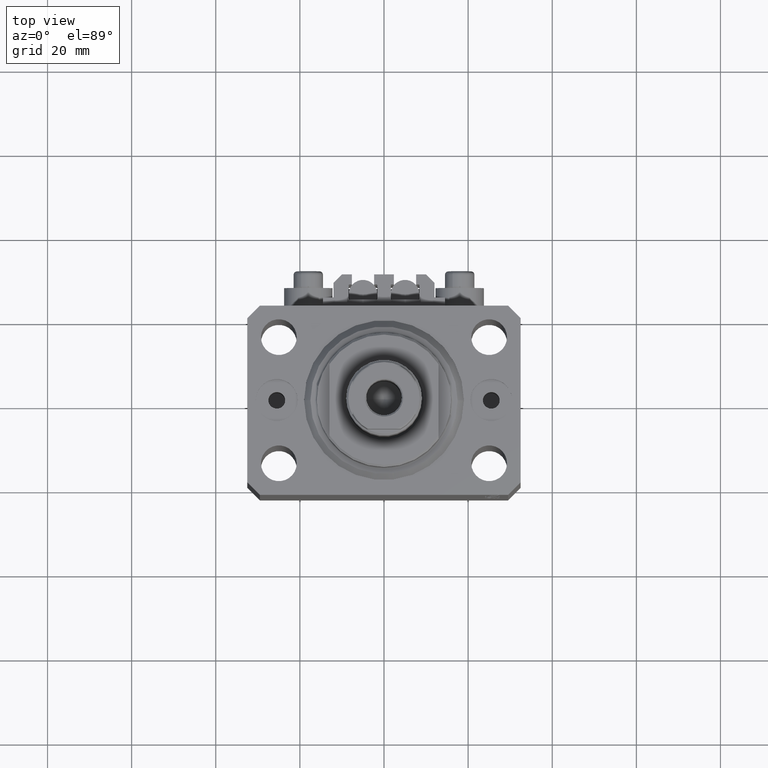
[diagram: clean part render]
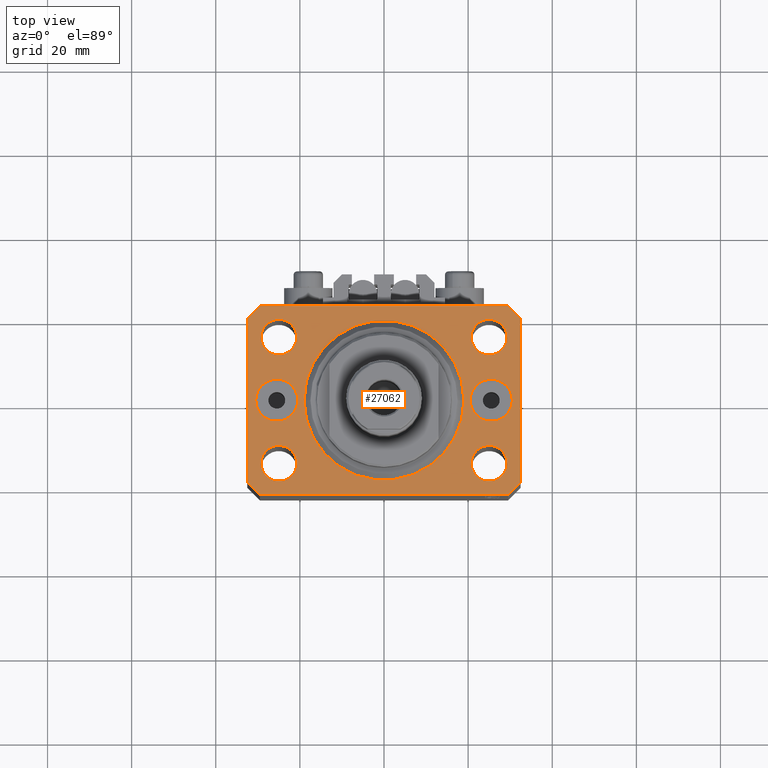
[diagram: same view with one face highlighted and labeled with its STEP entity id]
A machine part, top view. The second image highlights one B-rep face of the part: STEP entity #27062.
In plain terms, the highlighted planar face has unit normal (0, 0, 1).
Its self-contained STEP definition (entity closure, byte-faithful):
#212 = ORIENTED_EDGE ( 'NONE', *, *, #43812, .F. ) ;
#341 = EDGE_LOOP ( 'NONE', ( #42589, #27396 ) ) ;
#890 = CARTESIAN_POINT ( 'NONE',  ( 29.49999999999650413, -22.49999999999949196, 0.000000000000000000 ) ) ;
#1422 = CARTESIAN_POINT ( 'NONE',  ( -32.49999999999650413, 19.49999999999949907, 0.000000000000000000 ) ) ;
#1502 = DIRECTION ( 'NONE',  ( 0.000000000000000000, 0.000000000000000000, 1.000000000000000000 ) ) ;
#1574 = DIRECTION ( 'NONE',  ( 1.000000000000000000, 0.000000000000000000, 0.000000000000000000 ) ) ;
#1677 = CARTESIAN_POINT ( 'NONE',  ( -20.74999999995962341, -15.00000000000000355, 0.000000000000000000 ) ) ;
#2594 = CIRCLE ( 'NONE', #25802, 5.000000000003342215 ) ;
#2807 = VERTEX_POINT ( 'NONE', #11728 ) ;
#2954 = VERTEX_POINT ( 'NONE', #13647 ) ;
#3882 = CARTESIAN_POINT ( 'NONE',  ( 20.49999999999665690, 6.123233995740857512E-16, 0.000000000000000000 ) ) ;
#4400 = EDGE_LOOP ( 'NONE', ( #41999, #212 ) ) ;
#5500 = CARTESIAN_POINT ( 'NONE',  ( -29.25000000004036593, -15.00000000000000355, 0.000000000000000000 ) ) ;
#5580 = ORIENTED_EDGE ( 'NONE', *, *, #44724, .T. ) ;
#6516 = VECTOR ( 'NONE', #40094, 1000.000000000000000 ) ;
#6798 = EDGE_CURVE ( 'NONE', #31890, #43561, #11416, .T. ) ;
#7216 = CARTESIAN_POINT ( 'NONE',  ( -25.50000000000000000, 0.000000000000000000, 0.000000000000000000 ) ) ;
#7840 = DIRECTION ( 'NONE',  ( 1.000000000000000000, 0.000000000000000000, 0.000000000000000000 ) ) ;
#7847 = DIRECTION ( 'NONE',  ( 1.000000000000000000, 0.000000000000000000, 0.000000000000000000 ) ) ;
#8018 = EDGE_LOOP ( 'NONE', ( #27146, #45057 ) ) ;
#8037 = CARTESIAN_POINT ( 'NONE',  ( 25.00000000000000000, 14.99999999999999289, 0.000000000000000000 ) ) ;
#8135 = DIRECTION ( 'NONE',  ( 1.000000000000000000, 0.000000000000000000, -0.000000000000000000 ) ) ;
#8361 = VERTEX_POINT ( 'NONE', #3882 ) ;
#8397 = CARTESIAN_POINT ( 'NONE',  ( 29.24999999997631051, -15.00000000000000355, 0.000000000000000000 ) ) ;
#8990 = CIRCLE ( 'NONE', #36080, 4.250000000021375790 ) ;
#8992 = DIRECTION ( 'NONE',  ( 0.000000000000000000, 0.000000000000000000, 1.000000000000000000 ) ) ;
#9124 = ORIENTED_EDGE ( 'NONE', *, *, #39782, .F. ) ;
#9163 = VERTEX_POINT ( 'NONE', #37433 ) ;
#9344 = AXIS2_PLACEMENT_3D ( 'NONE', #27968, #13188, #1574 ) ;
#9843 = ORIENTED_EDGE ( 'NONE', *, *, #25281, .F. ) ;
#10347 = CIRCLE ( 'NONE', #38206, 5.000000000003342215 ) ;
#10369 = ORIENTED_EDGE ( 'NONE', *, *, #30901, .F. ) ;
#11061 = FACE_BOUND ( 'NONE', #29473, .T. ) ;
#11083 = DIRECTION ( 'NONE',  ( 0.000000000000000000, 0.000000000000000000, 1.000000000000000000 ) ) ;
#11189 = ORIENTED_EDGE ( 'NONE', *, *, #6798, .F. ) ;
#11197 = AXIS2_PLACEMENT_3D ( 'NONE', #29486, #37235, #8135 ) ;
#11211 = CARTESIAN_POINT ( 'NONE',  ( -30.50000000000333955, 6.123233995740857512E-16, 0.000000000000000000 ) ) ;
#11416 = CIRCLE ( 'NONE', #36960, 4.250000000040370374 ) ;
#11477 = VECTOR ( 'NONE', #17161, 1000.000000000000000 ) ;
#11537 = PLANE ( 'NONE',  #11197 ) ;
#11728 = CARTESIAN_POINT ( 'NONE',  ( 19.00000000000000000, 0.000000000000000000, 0.000000000000000000 ) ) ;
#11766 = CARTESIAN_POINT ( 'NONE',  ( 29.24999999995729283, 14.99999999999999289, 0.000000000000000000 ) ) ;
#11792 = EDGE_CURVE ( 'NONE', #27155, #44011, #41145, .T. ) ;
#12754 = CARTESIAN_POINT ( 'NONE',  ( 24.99999999999999289, -15.00000000000000355, 0.000000000000000000 ) ) ;
#12976 = CARTESIAN_POINT ( 'NONE',  ( 29.49999999999650413, -22.49999999999949196, 0.000000000000000000 ) ) ;
#13188 = DIRECTION ( 'NONE',  ( 0.000000000000000000, -0.000000000000000000, -1.000000000000000000 ) ) ;
#13213 = DIRECTION ( 'NONE',  ( 0.000000000000000000, 0.000000000000000000, 1.000000000000000000 ) ) ;
#13447 = CARTESIAN_POINT ( 'NONE',  ( 20.75000000002367884, -15.00000000000000355, 0.000000000000000000 ) ) ;
#13496 = CIRCLE ( 'NONE', #28957, 19.00000000000000000 ) ;
#13518 = CARTESIAN_POINT ( 'NONE',  ( -29.49999999999650413, -22.49999999999949907, 0.000000000000000000 ) ) ;
#13620 = VERTEX_POINT ( 'NONE', #22090 ) ;
#13647 = CARTESIAN_POINT ( 'NONE',  ( 30.50000000000333955, 0.000000000000000000, 0.000000000000000000 ) ) ;
#14099 = VERTEX_POINT ( 'NONE', #29719 ) ;
#14249 = LINE ( 'NONE', #36069, #34042 ) ;
#14552 = CIRCLE ( 'NONE', #20002, 4.250000000021375790 ) ;
#15353 = ORIENTED_EDGE ( 'NONE', *, *, #25007, .T. ) ;
#15419 = FACE_OUTER_BOUND ( 'NONE', #46138, .T. ) ;
#15646 = FACE_BOUND ( 'NONE', #341, .T. ) ;
#15730 = CIRCLE ( 'NONE', #35872, 4.250000000040370374 ) ;
#16408 = EDGE_CURVE ( 'NONE', #9163, #17086, #2594, .T. ) ;
#16449 = AXIS2_PLACEMENT_3D ( 'NONE', #17436, #28574, #36088 ) ;
#16587 = CARTESIAN_POINT ( 'NONE',  ( 25.00000000000000000, 14.99999999999999289, 0.000000000000000000 ) ) ;
#16885 = VECTOR ( 'NONE', #45053, 1000.000000000000000 ) ;
#17086 = VERTEX_POINT ( 'NONE', #11211 ) ;
#17115 = VERTEX_POINT ( 'NONE', #18733 ) ;
#17161 = DIRECTION ( 'NONE',  ( 0.000000000000000000, -1.000000000000000000, 0.000000000000000000 ) ) ;
#17327 = DIRECTION ( 'NONE',  ( 1.000000000000000000, 0.000000000000000000, 0.000000000000000000 ) ) ;
#17436 = CARTESIAN_POINT ( 'NONE',  ( 25.50000000000000000, 0.000000000000000000, 0.000000000000000000 ) ) ;
#18030 = LINE ( 'NONE', #33271, #6516 ) ;
#18290 = CARTESIAN_POINT ( 'NONE',  ( -24.99999999999999289, -15.00000000000000355, 0.000000000000000000 ) ) ;
#18297 = EDGE_CURVE ( 'NONE', #17086, #9163, #10347, .T. ) ;
#18733 = CARTESIAN_POINT ( 'NONE',  ( -19.00000000000000000, 2.326828918379970970E-15, 0.000000000000000000 ) ) ;
#19088 = CIRCLE ( 'NONE', #46206, 4.249999999976314058 ) ;
#19412 = EDGE_CURVE ( 'NONE', #22733, #39518, #20446, .T. ) ;
#19688 = CARTESIAN_POINT ( 'NONE',  ( -20.74999999997862687, 14.99999999999999645, 0.000000000000000000 ) ) ;
#20003 = DIRECTION ( 'NONE',  ( 0.7071067811865474617, -0.7071067811865474617, 0.000000000000000000 ) ) ;
#20002 = AXIS2_PLACEMENT_3D ( 'NONE', #32328, #13213, #17327 ) ;
#20446 = CIRCLE ( 'NONE', #47550, 4.249999999957291053 ) ;
#20518 = EDGE_CURVE ( 'NONE', #43926, #14099, #46830, .T. ) ;
#20863 = EDGE_CURVE ( 'NONE', #8361, #2954, #32677, .T. ) ;
#21047 = VECTOR ( 'NONE', #28384, 1000.000000000000000 ) ;
#21758 = DIRECTION ( 'NONE',  ( 1.000000000000000000, 0.000000000000000000, 0.000000000000000000 ) ) ;
#22008 = DIRECTION ( 'NONE',  ( 0.7071067811865483499, 0.7071067811865466846, 0.000000000000000000 ) ) ;
#22090 = CARTESIAN_POINT ( 'NONE',  ( -29.25000000002137668, 14.99999999999999645, 0.000000000000000000 ) ) ;
#22404 = CARTESIAN_POINT ( 'NONE',  ( 20.75000000004271072, 14.99999999999999289, 0.000000000000000000 ) ) ;
#22454 = FACE_BOUND ( 'NONE', #45815, .T. ) ;
#22733 = VERTEX_POINT ( 'NONE', #22404 ) ;
#23701 = CIRCLE ( 'NONE', #29078, 4.249999999957291053 ) ;
#23749 = EDGE_CURVE ( 'NONE', #43561, #31890, #15730, .T. ) ;
#23777 = DIRECTION ( 'NONE',  ( 1.000000000000000000, 0.000000000000000000, 0.000000000000000000 ) ) ;
#23874 = CARTESIAN_POINT ( 'NONE',  ( -32.49999999999650413, -19.49999999999949907, 0.000000000000000000 ) ) ;
#23933 = VERTEX_POINT ( 'NONE', #26385 ) ;
#23977 = AXIS2_PLACEMENT_3D ( 'NONE', #12754, #31647, #46695 ) ;
#24101 = DIRECTION ( 'NONE',  ( 1.000000000000000000, 0.000000000000000000, 0.000000000000000000 ) ) ;
#24248 = ORIENTED_EDGE ( 'NONE', *, *, #20518, .T. ) ;
#24491 = VERTEX_POINT ( 'NONE', #8397 ) ;
#25007 = EDGE_CURVE ( 'NONE', #23933, #47703, #31834, .T. ) ;
#25209 = EDGE_CURVE ( 'NONE', #14099, #32971, #18030, .T. ) ;
#25281 = EDGE_CURVE ( 'NONE', #2807, #17115, #13496, .T. ) ;
#25334 = VERTEX_POINT ( 'NONE', #19688 ) ;
#25802 = AXIS2_PLACEMENT_3D ( 'NONE', #7216, #11083, #25863 ) ;
#25863 = DIRECTION ( 'NONE',  ( 1.000000000000000000, 0.000000000000000000, 0.000000000000000000 ) ) ;
#26081 = FACE_BOUND ( 'NONE', #27039, .T. ) ;
#26194 = EDGE_CURVE ( 'NONE', #17115, #2807, #33602, .T. ) ;
#26385 = CARTESIAN_POINT ( 'NONE',  ( -32.49999999999650413, -19.49999999999949907, 0.000000000000000000 ) ) ;
#26948 = DIRECTION ( 'NONE',  ( 0.000000000000000000, 0.000000000000000000, 1.000000000000000000 ) ) ;
#27039 = EDGE_LOOP ( 'NONE', ( #28283, #11189 ) ) ;
#27062 = ADVANCED_FACE ( 'NONE', ( #15419, #11061, #15646, #37466, #26081, #30415, #22454, #44998 ), #11537, .T. ) ;
#27146 = ORIENTED_EDGE ( 'NONE', *, *, #45090, .T. ) ;
#27155 = VERTEX_POINT ( 'NONE', #12976 ) ;
#27194 = ORIENTED_EDGE ( 'NONE', *, *, #39296, .T. ) ;
#27396 = ORIENTED_EDGE ( 'NONE', *, *, #19412, .F. ) ;
#27968 = CARTESIAN_POINT ( 'NONE',  ( 25.50000000000000000, 0.000000000000000000, 0.000000000000000000 ) ) ;
#28148 = VECTOR ( 'NONE', #20003, 1000.000000000000114 ) ;
#28283 = ORIENTED_EDGE ( 'NONE', *, *, #23749, .F. ) ;
#28295 = DIRECTION ( 'NONE',  ( 1.000000000000000000, 1.176083712526788232E-16, 0.000000000000000000 ) ) ;
#28384 = DIRECTION ( 'NONE',  ( -0.7071067811865344721, 0.7071067811865606734, 0.000000000000000000 ) ) ;
#28574 = DIRECTION ( 'NONE',  ( 0.000000000000000000, -0.000000000000000000, -1.000000000000000000 ) ) ;
#28957 = AXIS2_PLACEMENT_3D ( 'NONE', #44924, #26948, #34454 ) ;
#29078 = AXIS2_PLACEMENT_3D ( 'NONE', #8037, #1502, #45615 ) ;
#29473 = EDGE_LOOP ( 'NONE', ( #9124, #10369 ) ) ;
#29486 = CARTESIAN_POINT ( 'NONE',  ( 0.000000000000000000, 0.000000000000000000, 0.000000000000000000 ) ) ;
#29719 = CARTESIAN_POINT ( 'NONE',  ( 29.49999999999707967, 22.49999999999952038, 0.000000000000000000 ) ) ;
#29885 = VERTEX_POINT ( 'NONE', #44875 ) ;
#30238 = ORIENTED_EDGE ( 'NONE', *, *, #26194, .F. ) ;
#30309 = CARTESIAN_POINT ( 'NONE',  ( -24.99999999999999289, -15.00000000000000355, 0.000000000000000000 ) ) ;
#30415 = FACE_BOUND ( 'NONE', #47648, .T. ) ;
#30800 = EDGE_CURVE ( 'NONE', #47703, #27155, #31916, .T. ) ;
#30836 = DIRECTION ( 'NONE',  ( 0.000000000000000000, 0.000000000000000000, 1.000000000000000000 ) ) ;
#30901 = EDGE_CURVE ( 'NONE', #13620, #25334, #8990, .T. ) ;
#30956 = ORIENTED_EDGE ( 'NONE', *, *, #30800, .T. ) ;
#31567 = CARTESIAN_POINT ( 'NONE',  ( -29.49999999999650413, -22.49999999999949907, 0.000000000000000000 ) ) ;
#31595 = DIRECTION ( 'NONE',  ( 0.000000000000000000, 0.000000000000000000, 1.000000000000000000 ) ) ;
#31647 = DIRECTION ( 'NONE',  ( 0.000000000000000000, 0.000000000000000000, 1.000000000000000000 ) ) ;
#31724 = DIRECTION ( 'NONE',  ( 0.000000000000000000, 0.000000000000000000, 1.000000000000000000 ) ) ;
#31834 = LINE ( 'NONE', #23874, #28148 ) ;
#31890 = VERTEX_POINT ( 'NONE', #5500 ) ;
#31916 = LINE ( 'NONE', #13518, #47698 ) ;
#32328 = CARTESIAN_POINT ( 'NONE',  ( -25.00000000000000000, 14.99999999999999645, 0.000000000000000000 ) ) ;
#32677 = CIRCLE ( 'NONE', #16449, 5.000000000003342215 ) ;
#32971 = VERTEX_POINT ( 'NONE', #40539 ) ;
#33051 = DIRECTION ( 'NONE',  ( 0.000000000000000000, 0.000000000000000000, 1.000000000000000000 ) ) ;
#33236 = ORIENTED_EDGE ( 'NONE', *, *, #25209, .T. ) ;
#33271 = CARTESIAN_POINT ( 'NONE',  ( 29.49999999999707967, 22.49999999999952038, 0.000000000000000000 ) ) ;
#33386 = CARTESIAN_POINT ( 'NONE',  ( 24.99999999999999289, -15.00000000000000355, 0.000000000000000000 ) ) ;
#33602 = CIRCLE ( 'NONE', #47556, 19.00000000000000000 ) ;
#33893 = EDGE_CURVE ( 'NONE', #39518, #22733, #23701, .T. ) ;
#34042 = VECTOR ( 'NONE', #47475, 1000.000000000000114 ) ;
#34243 = ORIENTED_EDGE ( 'NONE', *, *, #16408, .F. ) ;
#34454 = DIRECTION ( 'NONE',  ( 1.000000000000000000, 0.000000000000000000, 0.000000000000000000 ) ) ;
#35872 = AXIS2_PLACEMENT_3D ( 'NONE', #30309, #8992, #23777 ) ;
#36005 = VECTOR ( 'NONE', #22008, 1000.000000000000000 ) ;
#36069 = CARTESIAN_POINT ( 'NONE',  ( -29.49999999999650413, 22.49999999999949907, 0.000000000000000000 ) ) ;
#36080 = AXIS2_PLACEMENT_3D ( 'NONE', #44069, #47945, #21758 ) ;
#36088 = DIRECTION ( 'NONE',  ( 1.000000000000000000, 0.000000000000000000, 0.000000000000000000 ) ) ;
#36829 = EDGE_CURVE ( 'NONE', #24491, #39692, #19088, .T. ) ;
#36960 = AXIS2_PLACEMENT_3D ( 'NONE', #18290, #33051, #7847 ) ;
#37235 = DIRECTION ( 'NONE',  ( 0.000000000000000000, 0.000000000000000000, 1.000000000000000000 ) ) ;
#37433 = CARTESIAN_POINT ( 'NONE',  ( -20.49999999999665690, 0.000000000000000000, 0.000000000000000000 ) ) ;
#37466 = FACE_BOUND ( 'NONE', #4400, .T. ) ;
#37865 = CIRCLE ( 'NONE', #23977, 4.249999999976314058 ) ;
#37996 = LINE ( 'NONE', #44825, #16885 ) ;
#38132 = ORIENTED_EDGE ( 'NONE', *, *, #11792, .T. ) ;
#38206 = AXIS2_PLACEMENT_3D ( 'NONE', #46539, #31724, #46773 ) ;
#38738 = LINE ( 'NONE', #1422, #11477 ) ;
#39106 = ORIENTED_EDGE ( 'NONE', *, *, #18297, .F. ) ;
#39270 = ORIENTED_EDGE ( 'NONE', *, *, #40246, .T. ) ;
#39296 = EDGE_CURVE ( 'NONE', #44011, #43926, #37996, .T. ) ;
#39518 = VERTEX_POINT ( 'NONE', #11766 ) ;
#39692 = VERTEX_POINT ( 'NONE', #13447 ) ;
#39782 = EDGE_CURVE ( 'NONE', #25334, #13620, #14552, .T. ) ;
#40094 = DIRECTION ( 'NONE',  ( -1.000000000000000000, -3.528251137580330676E-16, 0.000000000000000000 ) ) ;
#40246 = EDGE_CURVE ( 'NONE', #29885, #23933, #38738, .T. ) ;
#40539 = CARTESIAN_POINT ( 'NONE',  ( -29.49999999999650413, 22.49999999999949907, 0.000000000000000000 ) ) ;
#41145 = LINE ( 'NONE', #890, #36005 ) ;
#41829 = CIRCLE ( 'NONE', #9344, 5.000000000003342215 ) ;
#41999 = ORIENTED_EDGE ( 'NONE', *, *, #36829, .F. ) ;
#42589 = ORIENTED_EDGE ( 'NONE', *, *, #33893, .F. ) ;
#43439 = CARTESIAN_POINT ( 'NONE',  ( 32.49999999999702993, 19.49999999999945999, 0.000000000000000000 ) ) ;
#43561 = VERTEX_POINT ( 'NONE', #1677 ) ;
#43812 = EDGE_CURVE ( 'NONE', #39692, #24491, #37865, .T. ) ;
#43926 = VERTEX_POINT ( 'NONE', #47839 ) ;
#44011 = VERTEX_POINT ( 'NONE', #44431 ) ;
#44069 = CARTESIAN_POINT ( 'NONE',  ( -25.00000000000000000, 14.99999999999999645, 0.000000000000000000 ) ) ;
#44431 = CARTESIAN_POINT ( 'NONE',  ( 32.49999999999651124, -19.49999999999949196, 0.000000000000000000 ) ) ;
#44574 = DIRECTION ( 'NONE',  ( 1.000000000000000000, 0.000000000000000000, 0.000000000000000000 ) ) ;
#44724 = EDGE_CURVE ( 'NONE', #32971, #29885, #14249, .T. ) ;
#44814 = DIRECTION ( 'NONE',  ( 0.000000000000000000, 0.000000000000000000, 1.000000000000000000 ) ) ;
#44825 = CARTESIAN_POINT ( 'NONE',  ( 32.49999999999651124, -19.49999999999949196, 0.000000000000000000 ) ) ;
#44875 = CARTESIAN_POINT ( 'NONE',  ( -32.49999999999650413, 19.49999999999949907, 0.000000000000000000 ) ) ;
#44924 = CARTESIAN_POINT ( 'NONE',  ( 0.000000000000000000, 0.000000000000000000, 0.000000000000000000 ) ) ;
#44935 = CARTESIAN_POINT ( 'NONE',  ( 0.000000000000000000, 0.000000000000000000, 0.000000000000000000 ) ) ;
#44998 = FACE_BOUND ( 'NONE', #8018, .T. ) ;
#45053 = DIRECTION ( 'NONE',  ( 1.334402673828349134E-14, 1.000000000000000000, 0.000000000000000000 ) ) ;
#45057 = ORIENTED_EDGE ( 'NONE', *, *, #20863, .T. ) ;
#45090 = EDGE_CURVE ( 'NONE', #2954, #8361, #41829, .T. ) ;
#45615 = DIRECTION ( 'NONE',  ( 1.000000000000000000, 0.000000000000000000, 0.000000000000000000 ) ) ;
#45815 = EDGE_LOOP ( 'NONE', ( #34243, #39106 ) ) ;
#46138 = EDGE_LOOP ( 'NONE', ( #33236, #5580, #39270, #15353, #30956, #38132, #27194, #24248 ) ) ;
#46206 = AXIS2_PLACEMENT_3D ( 'NONE', #33386, #44814, #44574 ) ;
#46539 = CARTESIAN_POINT ( 'NONE',  ( -25.50000000000000000, 0.000000000000000000, 0.000000000000000000 ) ) ;
#46695 = DIRECTION ( 'NONE',  ( 1.000000000000000000, 0.000000000000000000, 0.000000000000000000 ) ) ;
#46773 = DIRECTION ( 'NONE',  ( 1.000000000000000000, 0.000000000000000000, 0.000000000000000000 ) ) ;
#46830 = LINE ( 'NONE', #43439, #21047 ) ;
#47475 = DIRECTION ( 'NONE',  ( -0.7071067811865474617, -0.7071067811865474617, 0.000000000000000000 ) ) ;
#47550 = AXIS2_PLACEMENT_3D ( 'NONE', #16587, #31595, #24101 ) ;
#47556 = AXIS2_PLACEMENT_3D ( 'NONE', #44935, #30836, #7840 ) ;
#47648 = EDGE_LOOP ( 'NONE', ( #9843, #30238 ) ) ;
#47698 = VECTOR ( 'NONE', #28295, 1000.000000000000000 ) ;
#47703 = VERTEX_POINT ( 'NONE', #31567 ) ;
#47839 = CARTESIAN_POINT ( 'NONE',  ( 32.49999999999702993, 19.49999999999945999, 0.000000000000000000 ) ) ;
#47945 = DIRECTION ( 'NONE',  ( 0.000000000000000000, 0.000000000000000000, 1.000000000000000000 ) ) ;